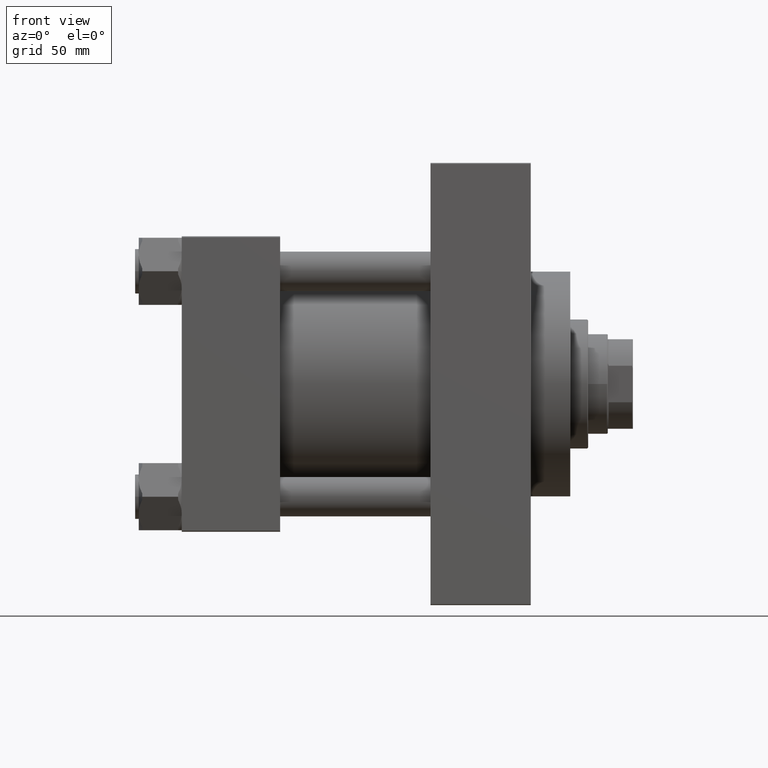
[diagram: clean part render]
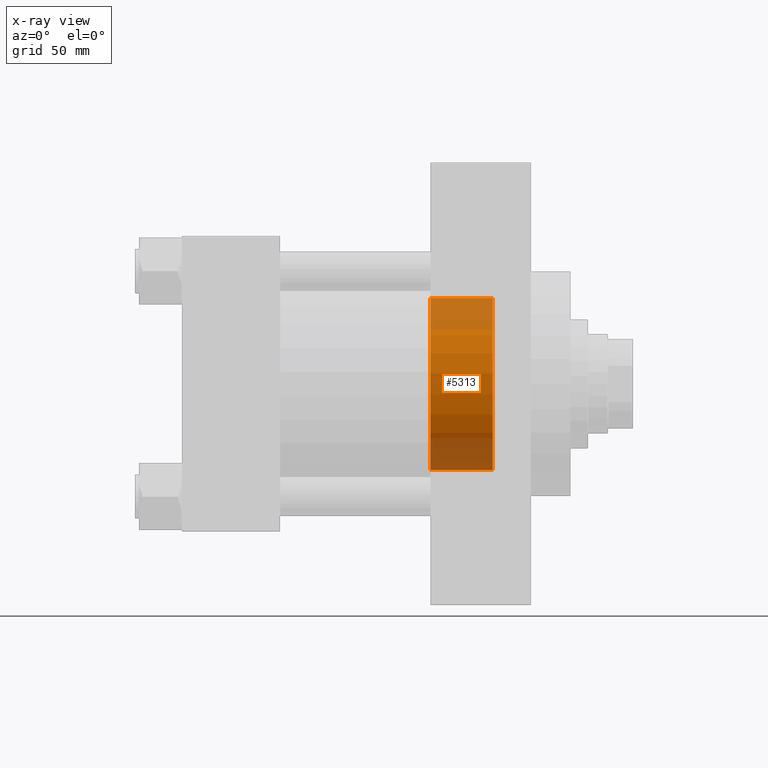
[diagram: x-ray — body ghosted, one internal face saturated and labeled with its STEP entity id]
A machine part, front view, then the same camera in x-ray: the body is ghosted and one INTERNAL B-rep face — a face not visible from any outside direction — is saturated and labeled: STEP entity #5313.
In plain terms, the highlighted cylindrical surface (partial cylindrical patch) has radius 48 mm, axis along (1, 0, 0).
Its self-contained STEP definition (entity closure, byte-faithful):
#78 = CARTESIAN_POINT ( 'NONE',  ( 173.7400000000000091, 0.000000000000000000, -48.00000000000000711 ) ) ;
#165 = AXIS2_PLACEMENT_3D ( 'NONE', #7027, #24051, #2271 ) ;
#2271 = DIRECTION ( 'NONE',  ( 0.000000000000000000, 0.000000000000000000, 1.000000000000000000 ) ) ;
#3577 = CARTESIAN_POINT ( 'NONE',  ( 139.0000000000000000, 5.878304635907296578E-15, 48.00000000000000711 ) ) ;
#5313 = ADVANCED_FACE ( 'NONE', ( #7262 ), #10654, .F. ) ;
#5318 = DIRECTION ( 'NONE',  ( 1.000000000000000000, 0.000000000000000000, 0.000000000000000000 ) ) ;
#5397 = EDGE_CURVE ( 'NONE', #19014, #37150, #20267, .T. ) ;
#5539 = VECTOR ( 'NONE', #14841, 1000.000000000000000 ) ;
#6035 = AXIS2_PLACEMENT_3D ( 'NONE', #19608, #5318, #15727 ) ;
#7027 = CARTESIAN_POINT ( 'NONE',  ( 139.0000000000000000, 0.000000000000000000, 0.000000000000000000 ) ) ;
#7262 = FACE_OUTER_BOUND ( 'NONE', #27296, .T. ) ;
#7885 = EDGE_CURVE ( 'NONE', #19014, #18187, #39350, .T. ) ;
#8802 = CARTESIAN_POINT ( 'NONE',  ( -80.76450198781715528, 5.878304635907296578E-15, 48.00000000000000711 ) ) ;
#10654 = CYLINDRICAL_SURFACE ( 'NONE', #41103, 48.00000000000000711 ) ;
#10884 = DIRECTION ( 'NONE',  ( 0.000000000000000000, 0.000000000000000000, -1.000000000000000000 ) ) ;
#13155 = DIRECTION ( 'NONE',  ( 1.000000000000000000, -0.000000000000000000, -0.000000000000000000 ) ) ;
#14841 = DIRECTION ( 'NONE',  ( 1.000000000000000000, -0.000000000000000000, -0.000000000000000000 ) ) ;
#15348 = CARTESIAN_POINT ( 'NONE',  ( 173.7400000000000091, 5.878304635907296578E-15, 48.00000000000000711 ) ) ;
#15727 = DIRECTION ( 'NONE',  ( 0.000000000000000000, 0.000000000000000000, -1.000000000000000000 ) ) ;
#18187 = VERTEX_POINT ( 'NONE', #78 ) ;
#19014 = VERTEX_POINT ( 'NONE', #19790 ) ;
#19608 = CARTESIAN_POINT ( 'NONE',  ( 173.7400000000000091, 0.000000000000000000, 0.000000000000000000 ) ) ;
#19790 = CARTESIAN_POINT ( 'NONE',  ( 139.0000000000000000, 0.000000000000000000, -48.00000000000000711 ) ) ;
#19924 = LINE ( 'NONE', #8802, #25487 ) ;
#20267 = CIRCLE ( 'NONE', #165, 48.00000000000000711 ) ;
#23247 = EDGE_CURVE ( 'NONE', #25933, #18187, #27689, .T. ) ;
#24051 = DIRECTION ( 'NONE',  ( -1.000000000000000000, 0.000000000000000000, -0.000000000000000000 ) ) ;
#25487 = VECTOR ( 'NONE', #33953, 1000.000000000000000 ) ;
#25933 = VERTEX_POINT ( 'NONE', #15348 ) ;
#27296 = EDGE_LOOP ( 'NONE', ( #28811, #44756, #32131, #43118 ) ) ;
#27689 = CIRCLE ( 'NONE', #6035, 48.00000000000000711 ) ;
#28811 = ORIENTED_EDGE ( 'NONE', *, *, #5397, .T. ) ;
#31297 = EDGE_CURVE ( 'NONE', #37150, #25933, #19924, .T. ) ;
#32131 = ORIENTED_EDGE ( 'NONE', *, *, #23247, .T. ) ;
#33700 = CARTESIAN_POINT ( 'NONE',  ( -80.76450198781715528, 0.000000000000000000, -48.00000000000000711 ) ) ;
#33953 = DIRECTION ( 'NONE',  ( 1.000000000000000000, -0.000000000000000000, -0.000000000000000000 ) ) ;
#37150 = VERTEX_POINT ( 'NONE', #3577 ) ;
#39350 = LINE ( 'NONE', #33700, #5539 ) ;
#41103 = AXIS2_PLACEMENT_3D ( 'NONE', #43816, #13155, #10884 ) ;
#43118 = ORIENTED_EDGE ( 'NONE', *, *, #7885, .F. ) ;
#43816 = CARTESIAN_POINT ( 'NONE',  ( -80.76450198781715528, 0.000000000000000000, 0.000000000000000000 ) ) ;
#44756 = ORIENTED_EDGE ( 'NONE', *, *, #31297, .T. ) ;